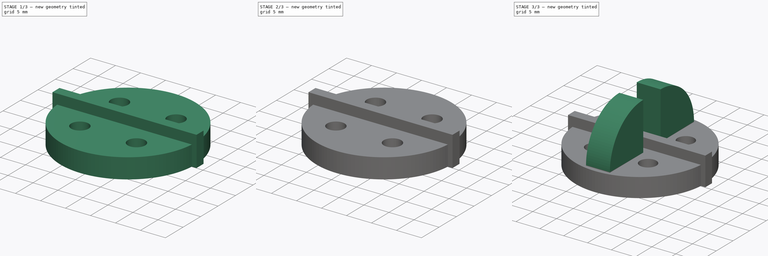
[diagram: build sequence overview — one tinted view per stage of 3, left to right]
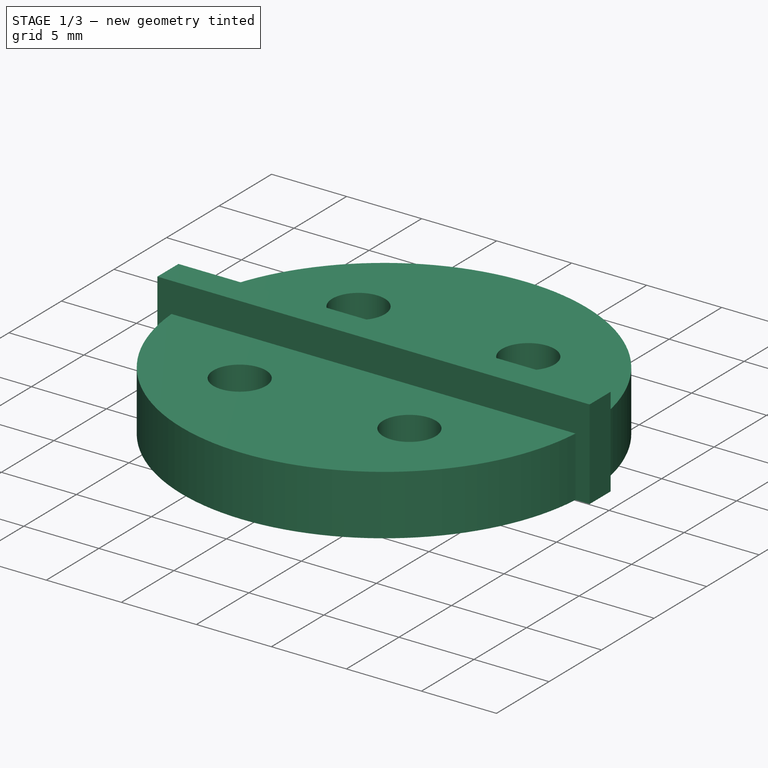
[diagram: stage 1 of 3 — iso view after this stage's code; geometry added in this stage tinted green]
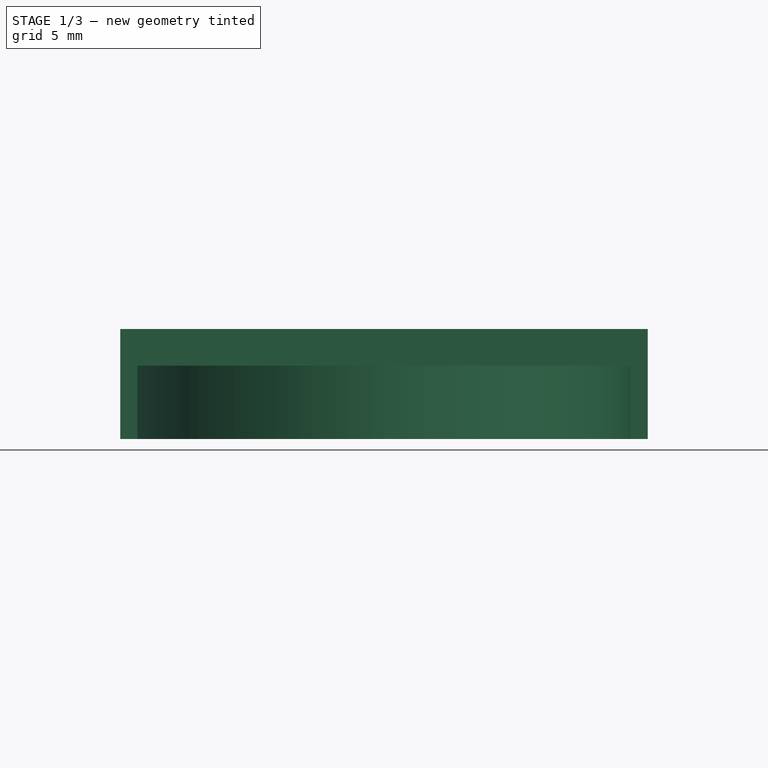
[diagram: stage 1 of 3 — front view after this stage's code; geometry added in this stage tinted green]
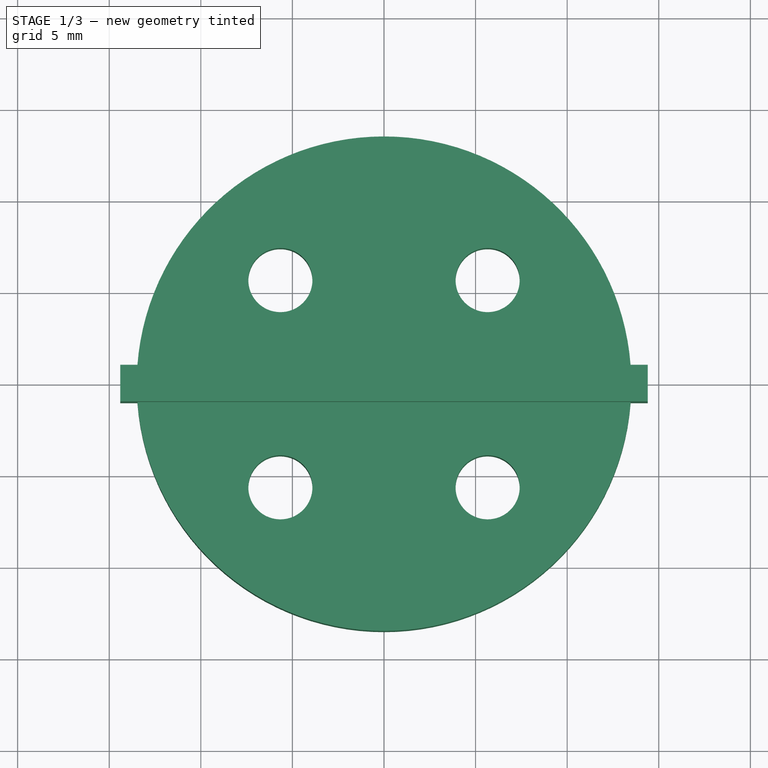
[diagram: stage 1 of 3 — top view after this stage's code; geometry added in this stage tinted green]
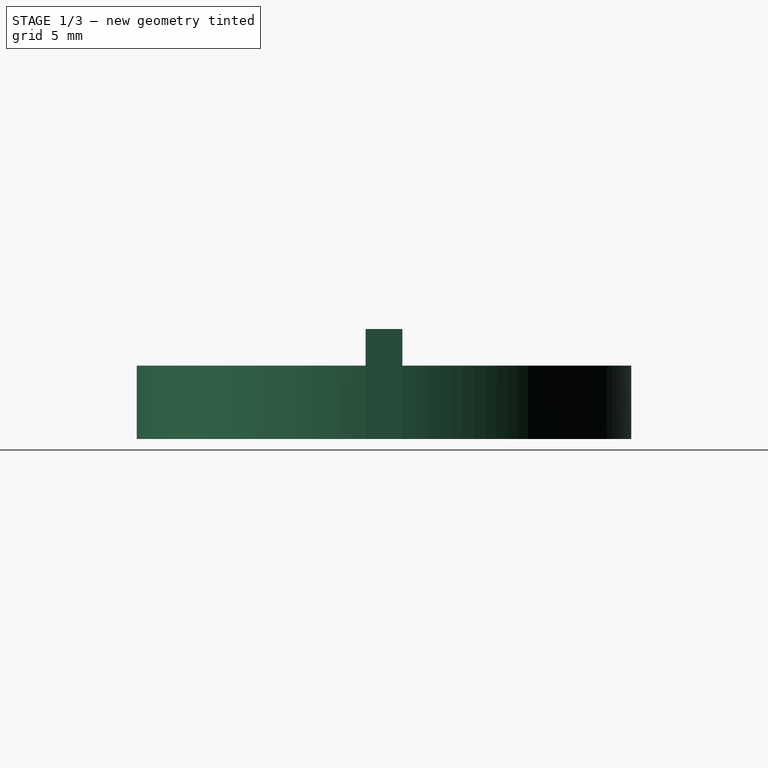
[diagram: stage 1 of 3 — right view after this stage's code; geometry added in this stage tinted green]
FCSTD DOCUMENT  (FreeCAD 0.19R)
Label: motor_holder_aileron_part
License: All rights reserved
LicenseURL: http://en.wikipedia.org/wiki/All_rights_reserved
objects: Sketcher::SketchObject×4, PartDesign::Pad×3, App::DocumentObjectGroup×2, PartDesign::CoordinateSystem×2, App::FeaturePython×1, PartDesign::Pocket×1, PartDesign::Fillet×1, PartDesign::Body×1, App::Part×1
note: 17 computed .brp shape members not serialized (recipe doc carries the construction recipe); baked Part::Feature solids carry a one-line shape summary decoded from their .brp

FEATURE [App::DocumentObjectGroup] Parts
FEATURE [PartDesign::CoordinateSystem] LCS_Origin
  AttacherType = Attacher::AttachEngine3D
  MapMode = 2
  Support = -> [X_Axis]
FEATURE [App::DocumentObjectGroup] Constraints
FEATURE [App::FeaturePython] Variables  # WARN: FeaturePython — macro-defined, semantics opaque (R4)
FEATURE [Sketcher::SketchObject] Sketch004
  FullyConstrained = true
  MapMode = 5
  Placement = pos=(0,0,0) rot=(1,0,0;3.14159rad)
  sketch-geometry (4):
    g0: LineSegment StartX=-14.4 StartY=1 StartZ=0 EndX=14.4 EndY=1 EndZ=0
    g1: LineSegment StartX=14.4 StartY=1 StartZ=0 EndX=14.4 EndY=-1 EndZ=0
    g2: LineSegment StartX=14.4 StartY=-1 StartZ=0 EndX=-14.4 EndY=-1 EndZ=0
    g3: LineSegment StartX=-14.4 StartY=-1 StartZ=0 EndX=-14.4 EndY=1 EndZ=0
  constraints (10):
    c: Coincident(g0,g1)
    c: Coincident(g1,g2)
    c: Coincident(g2,g3)
    c: Coincident(g3,g0)
    c: Horizontal(g2)
    c: Vertical(g1)
    c: DistanceX(g0,g0) = 28.8
    c: DistanceY(g1,g1) = 2
    c: Symmetric(g0,g0,g-2)
    c: Symmetric(g2,g0,g-1)
FEATURE [Sketcher::SketchObject] Sketch
  FullyConstrained = false
  MapMode = 5
  Support = -> [XY_Plane001]
  sketch-geometry (7):
    g0: Circle CenterX=0 CenterY=0 CenterZ=0 NormalX=0 NormalY=0 NormalZ=1 AngleXU=0 Radius=13.5
    g1: Circle CenterX=-5.65685 CenterY=-5.65685 CenterZ=0 NormalX=0 NormalY=0 NormalZ=1 AngleXU=0 Radius=1.75
    g2: Circle CenterX=5.65685 CenterY=5.65685 CenterZ=0 NormalX=0 NormalY=0 NormalZ=1 AngleXU=0 Radius=1.75
    g3: Circle CenterX=-5.65685 CenterY=5.65685 CenterZ=0 NormalX=0 NormalY=0 NormalZ=1 AngleXU=0 Radius=1.75
    g4: Circle CenterX=5.65685 CenterY=-5.65685 CenterZ=0 NormalX=0 NormalY=0 NormalZ=1 AngleXU=0 Radius=1.75
    g5: LineSegment StartX=-16.3288 StartY=-16.3288 StartZ=0 EndX=16.5596 EndY=16.5596 EndZ=0
    g6: LineSegment StartX=-12.9244 StartY=12.9244 StartZ=0 EndX=15.1797 EndY=-15.1797 EndZ=0
  constraints (18):
    c: Coincident(g0,g-1)
    c: Diameter(g0) = 27
    c: Diameter(g1) = 3.5
    c: Diameter(g2) = 3.5
    c: Diameter(g3) = 3.5
    c: Diameter(g4) = 3.5
    c: PointOnObject(g0,g5)
    c: Angle(g5) = 0.785398
    c: PointOnObject(g0,g6)
    c: Angle(g6) = -0.785398
    c: PointOnObject(g2,g5)
    c: PointOnObject(g1,g5)
    c: PointOnObject(g4,g6)
    c: Distance(g3,g5) = 8
    c: Distance(g0,g1) = 8
    c: Distance(g0,g2) = 8
    c: PointOnObject(g3,g6)
    c: Distance(g0,g4) = 8
FEATURE [PartDesign::Pad] Pad
  Direction = (1,1,1)
  Length = 4
  Length2 = 100
  Profile = -> Sketch
  Type = 0
FEATURE [PartDesign::Pad] Pad001
  BaseFeature = -> Pad
  Direction = (1,1,1)
  Length = 6
  Length2 = 100
  Profile = -> Sketch004
  Reversed = true
  Type = 0
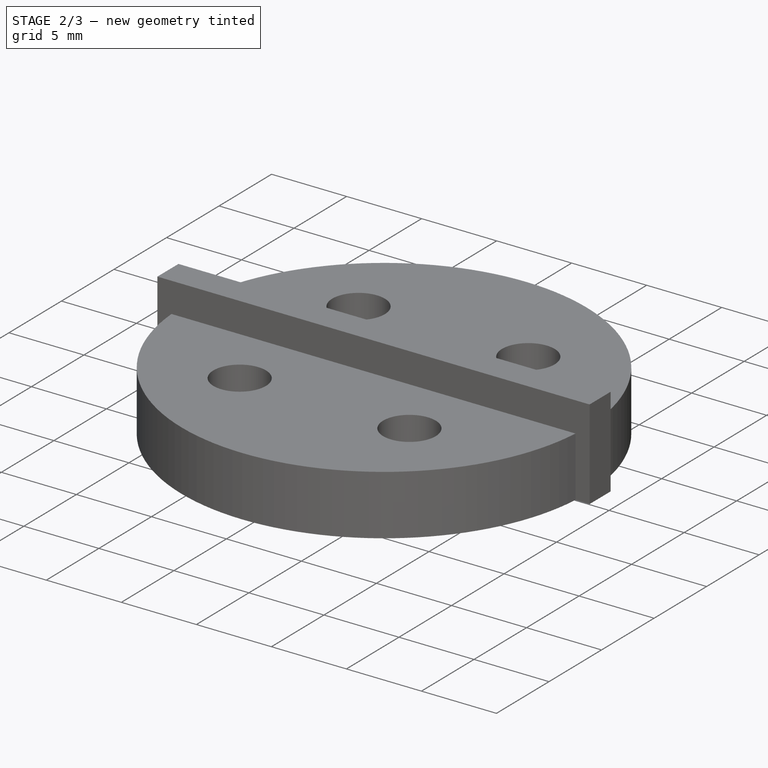
[diagram: stage 2 of 3 — iso view after this stage's code; geometry added in this stage tinted green]
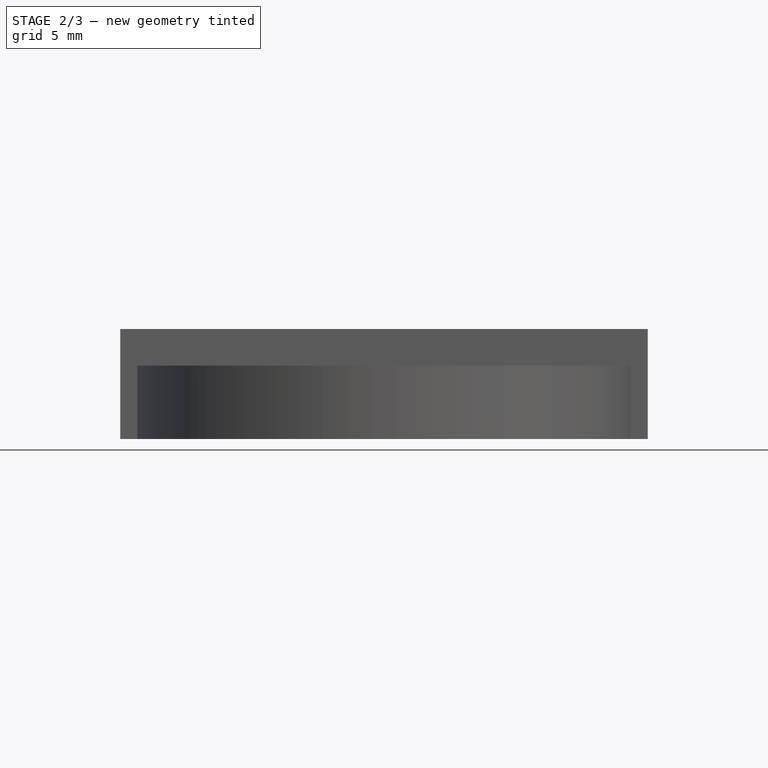
[diagram: stage 2 of 3 — front view after this stage's code; geometry added in this stage tinted green]
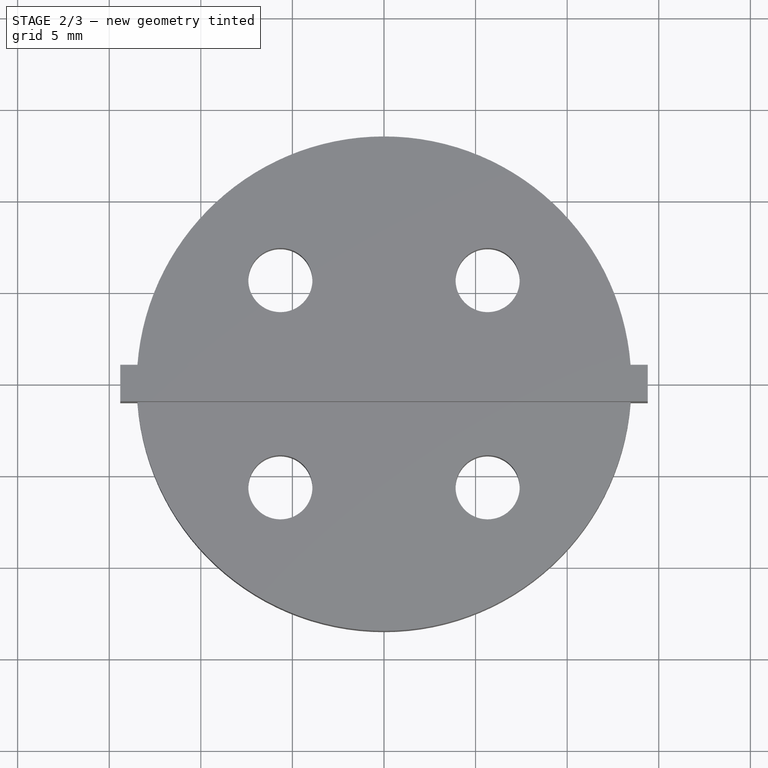
[diagram: stage 2 of 3 — top view after this stage's code; geometry added in this stage tinted green]
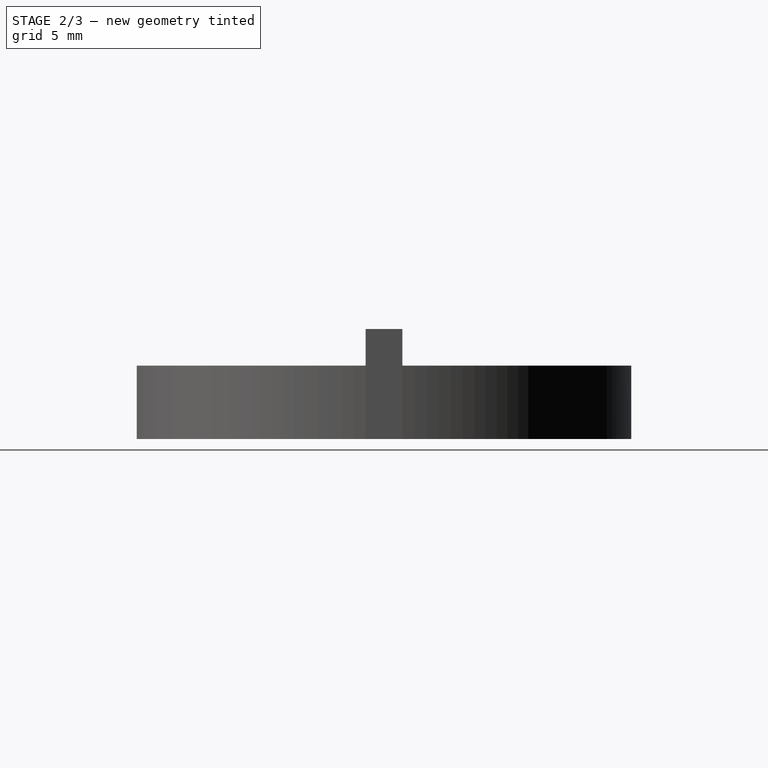
[diagram: stage 2 of 3 — right view after this stage's code; geometry added in this stage tinted green]
FEATURE [Sketcher::SketchObject] Sketch005
  FullyConstrained = true
  MapMode = 5
  Placement = pos=(0,0,0) rot=(1,0,0;3.14159rad)
  Support = -> [Pad001]
  sketch-geometry (1):
    g0: Circle CenterX=0 CenterY=0 CenterZ=0 NormalX=0 NormalY=0 NormalZ=1 AngleXU=0 Radius=4
  constraints (2):
    c: Diameter(g0) = 8
    c: Coincident(g0,g-1)
FEATURE [PartDesign::Pocket] Pocket
  BaseFeature = -> Pad001
  Length = 3
  Length2 = 100
  Profile = -> Sketch005
  Type = 0
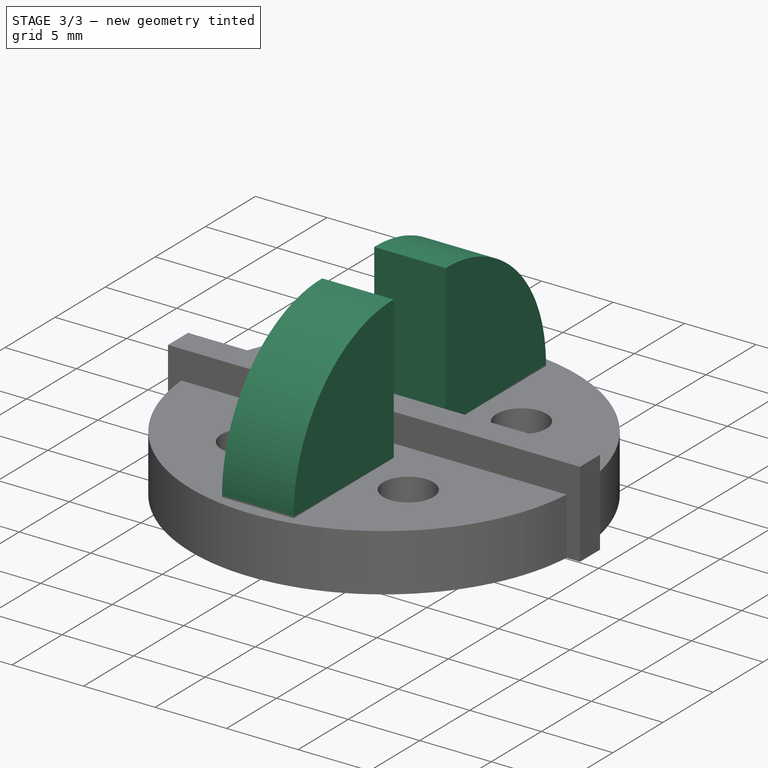
[diagram: stage 3 of 3 — iso view after this stage's code; geometry added in this stage tinted green]
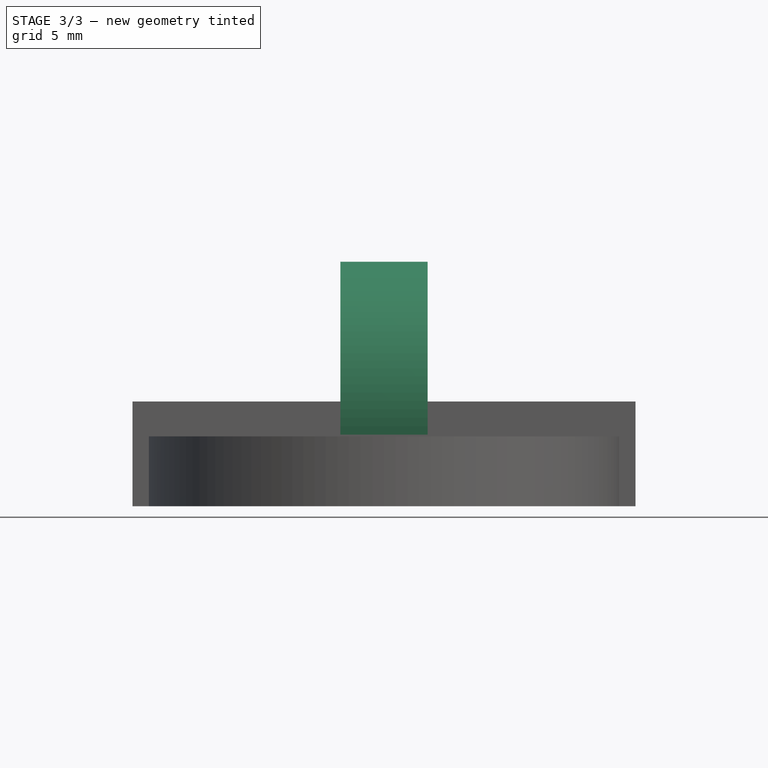
[diagram: stage 3 of 3 — front view after this stage's code; geometry added in this stage tinted green]
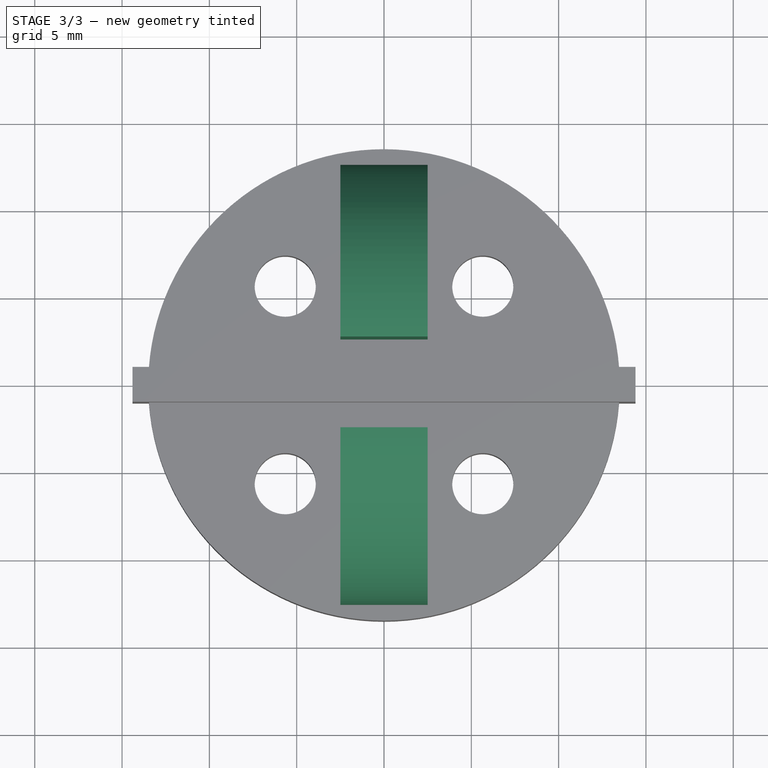
[diagram: stage 3 of 3 — top view after this stage's code; geometry added in this stage tinted green]
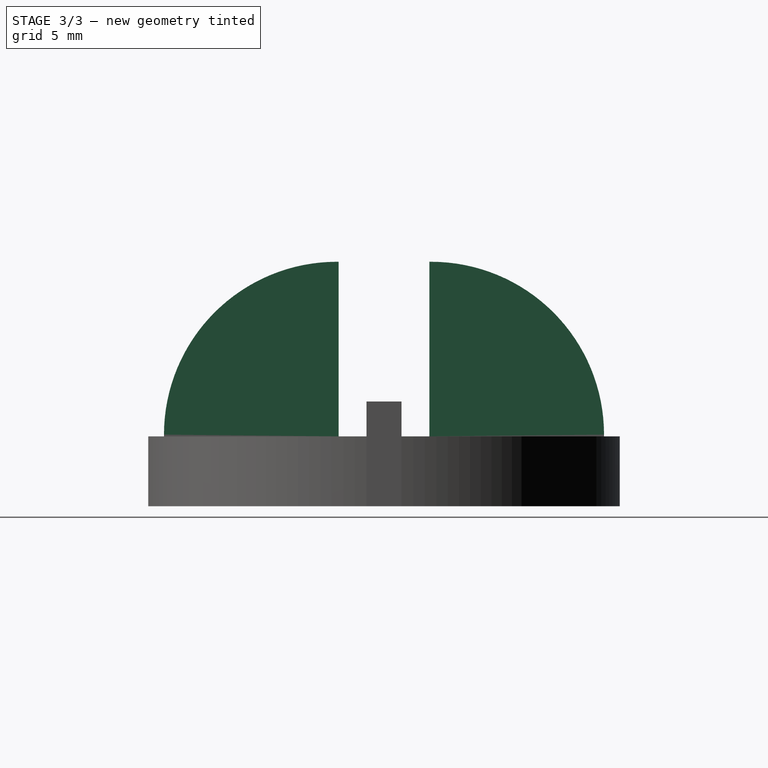
[diagram: stage 3 of 3 — right view after this stage's code; geometry added in this stage tinted green]
FEATURE [PartDesign::CoordinateSystem] LCS_1
  AttacherType = Attacher::AttachEngine3D
  MapMode = 7
  Placement = pos=(-14.4,1,6) rot=(0,0.707107,0.707107;3.14159rad)
  Support = -> [Pocket]
FEATURE [Sketcher::SketchObject] Sketch006
  FullyConstrained = false
  MapMode = 5
  Placement = pos=(0,0,4) rot=(0,0,1;0rad)
  Support = -> [Pocket]
  sketch-geometry (10):
    g0: LineSegment StartX=-16.2537 StartY=-2.6 StartZ=0 EndX=18.2285 EndY=-2.6 EndZ=0
    g1: LineSegment StartX=-20.9704 StartY=2.6 StartZ=0 EndX=21.7098 EndY=2.6 EndZ=0
    g2: LineSegment StartX=-2.5 StartY=-2.6 StartZ=0 EndX=2.5 EndY=-2.6 EndZ=0
    g3: LineSegment StartX=2.5 StartY=-2.6 StartZ=0 EndX=2.5 EndY=-12.6 EndZ=0
    g4: LineSegment StartX=2.5 StartY=-12.6 StartZ=0 EndX=-2.5 EndY=-12.6 EndZ=0
    g5: LineSegment StartX=-2.5 StartY=-12.6 StartZ=0 EndX=-2.5 EndY=-2.6 EndZ=0
    g6: LineSegment StartX=-2.5 StartY=12.6 StartZ=0 EndX=2.5 EndY=12.6 EndZ=0
    g7: LineSegment StartX=2.5 StartY=12.6 StartZ=0 EndX=2.5 EndY=2.6 EndZ=0
    g8: LineSegment StartX=2.5 StartY=2.6 StartZ=0 EndX=-2.5 EndY=2.6 EndZ=0
    g9: LineSegment StartX=-2.5 StartY=2.6 StartZ=0 EndX=-2.5 EndY=12.6 EndZ=0
  constraints (26):
    c: Horizontal(g0)
    c: Horizontal(g1)
    c: DistanceY(g-1,g1) = 2.6
    c: DistanceY(g-1,g0) = -2.6
    c: Coincident(g2,g3)
    c: Coincident(g3,g4)
    c: Coincident(g4,g5)
    c: Coincident(g5,g2)
    c: Horizontal(g4)
    c: Vertical(g3)
    c: Vertical(g5)
    c: DistanceY(g5,g5) = 10
    c: DistanceX(g2,g2) = 5
    c: Symmetric(g2,g2,g-2)
    c: PointOnObject(g2,g0)
    c: Coincident(g6,g7)
    c: Coincident(g7,g8)
    c: Coincident(g8,g9)
    c: Coincident(g9,g6)
    c: Horizontal(g6)
    c: Vertical(g7)
    c: Vertical(g9)
    c: DistanceY(g9,g9) = 10
    c: DistanceX(g6,g6) = 5
    c: Symmetric(g7,g8,g-2)
    c: PointOnObject(g7,g1)
FEATURE [PartDesign::Pad] Pad002
  BaseFeature = -> Pocket
  Direction = (1,1,1)
  Length = 10
  Length2 = 100
  Profile = -> Sketch006
  Type = 0
FEATURE [PartDesign::Fillet] Fillet
  Base = -> Pad002 [Edge74,Edge63]
  BaseFeature = -> Pad002
  Radius = 9.9
  SupportTransform = false
FEATURE [PartDesign::Body] Body
  Group = -> [Sketch,Pad,Sketch004,Pad001,Sketch005,Pocket,Sketch006,Pad002,Fillet]
  Origin = -> Origin001
  Tip = -> Fillet
FEATURE [App::Part] Model
  Configuration = 0
  Group = -> [LCS_Origin,Constraints,Variables,Body,LCS_1]
  Origin = -> Origin
  Type = Assembly4 Model
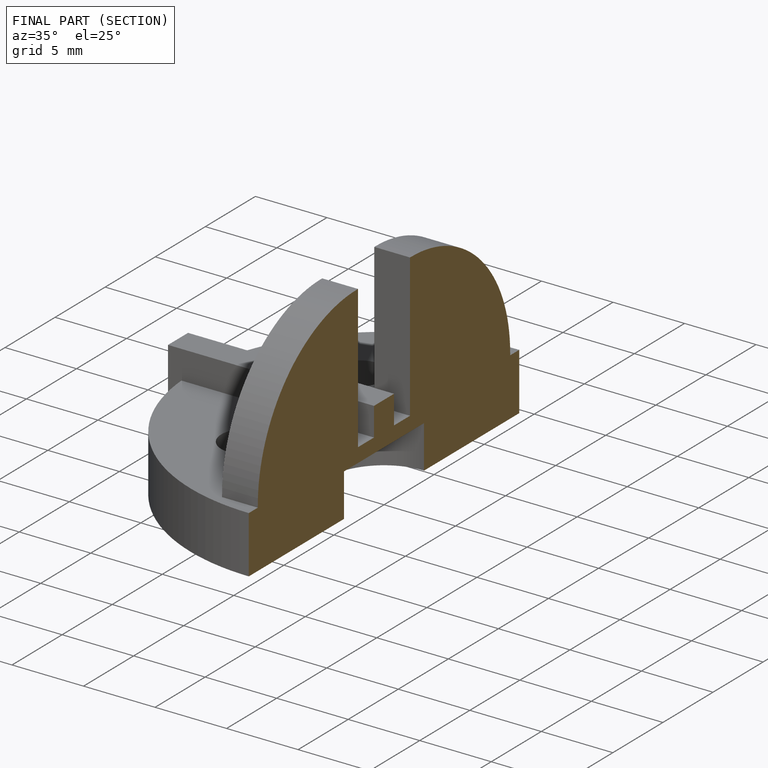
[diagram: finished part — half-section view (interior)]
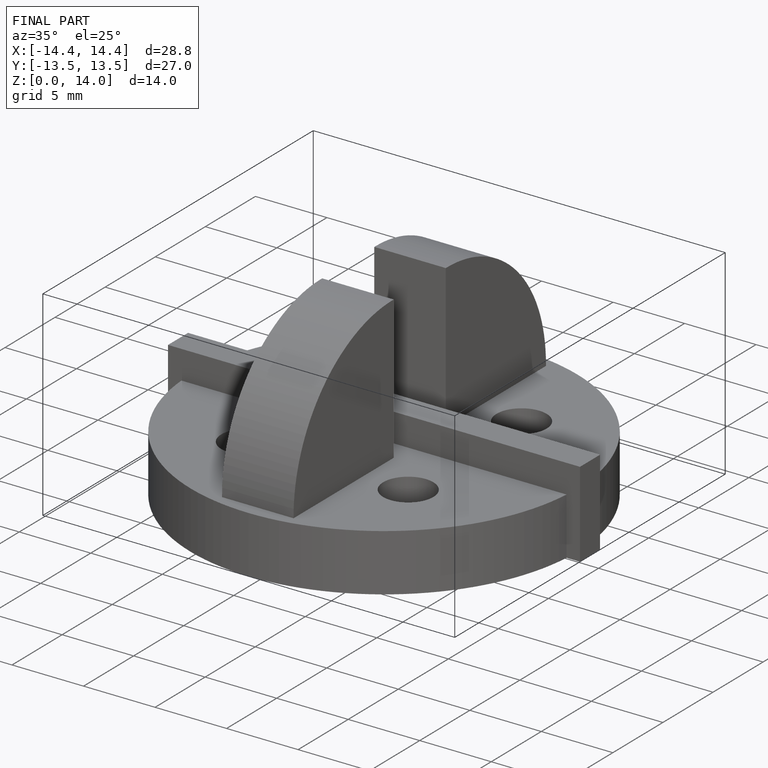
[diagram: finished part — iso view with bounding-box wireframe]
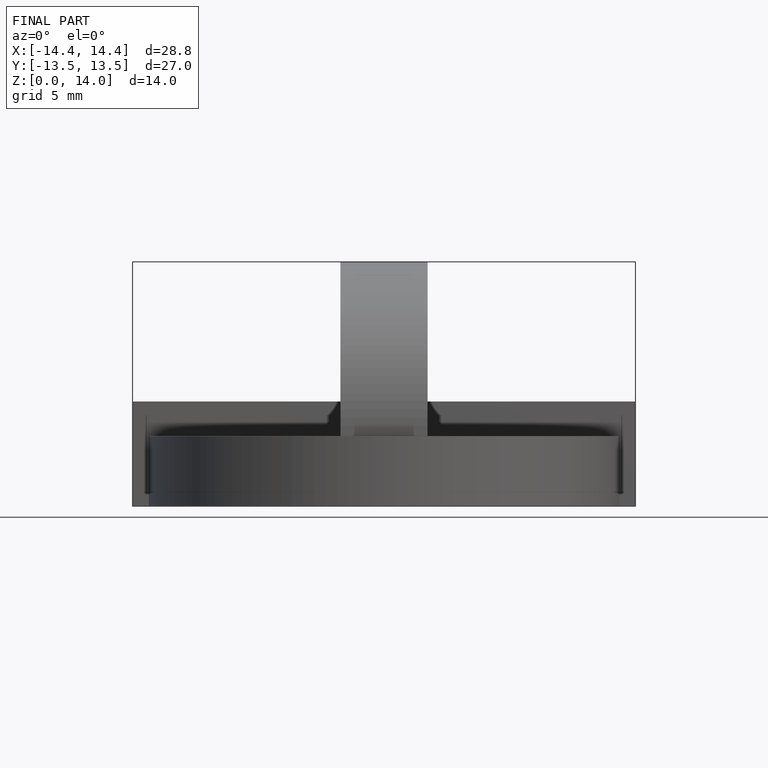
[diagram: finished part — front view with bounding-box wireframe]
